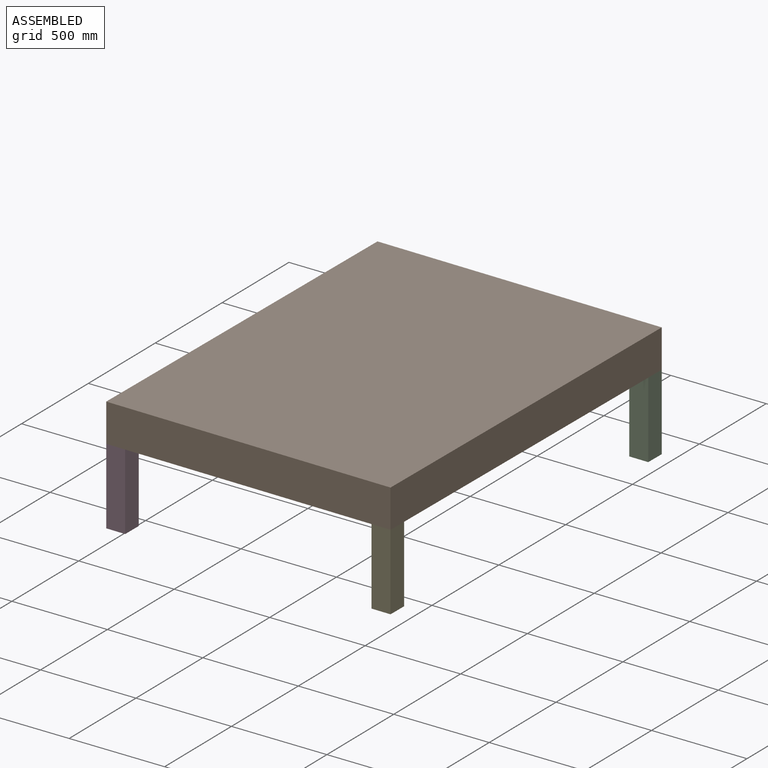
[diagram: assembled view]
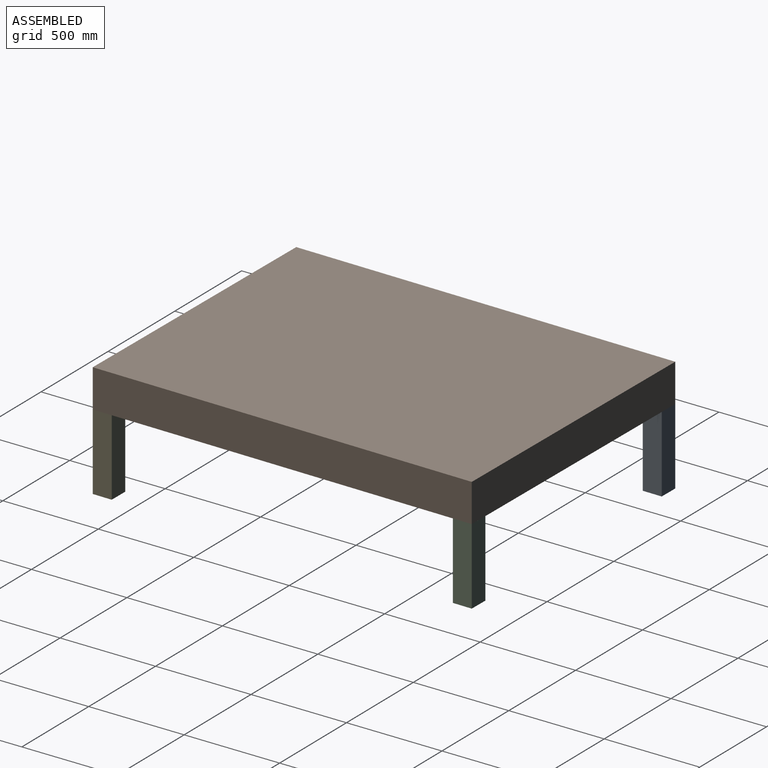
[diagram: assembled view, second angle]
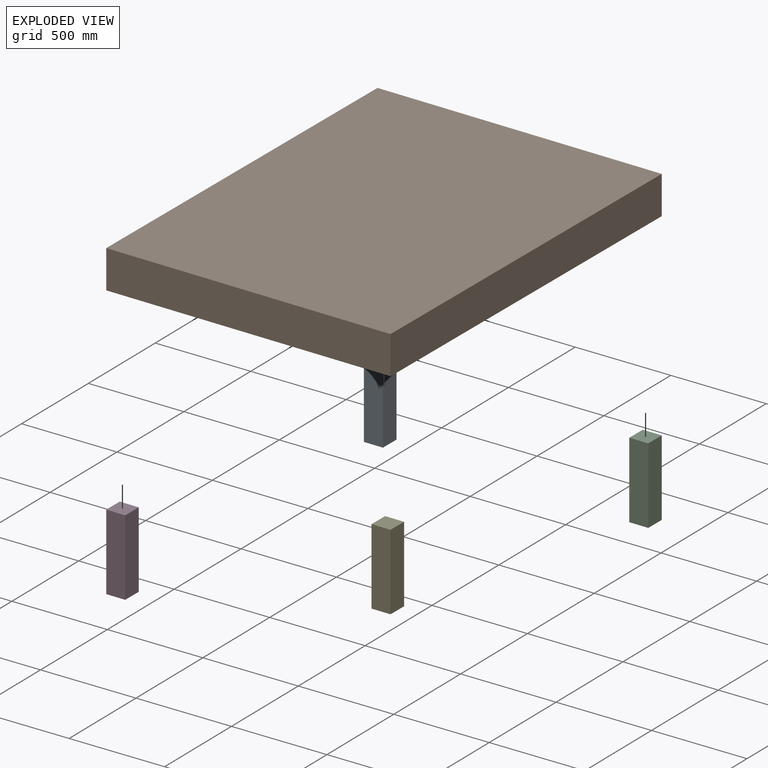
[diagram: exploded view]
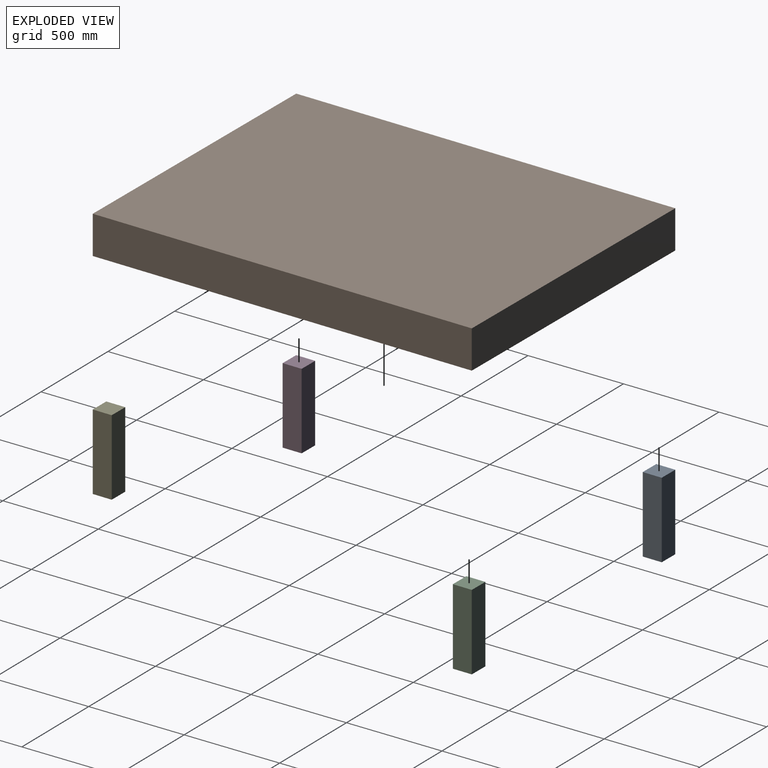
[diagram: exploded view, second angle]
ASSEMBLY  parts=5 mates=4
PART A: 6 faces, bbox 100x100x400 mm
  f0: plane 400x100mm, normal (0,-1,0), area 40000mm2, adj f1,f3,f4,f5
  f1: plane 400x100mm, normal (1,0,0), area 40000mm2, adj f0,f2,f4,f5
  f2: plane 400x100mm, normal (0,1,0), area 40000mm2, adj f1,f3,f4,f5
  f3: plane 400x100mm, normal (-1,0,0), area 40000mm2, adj f0,f2,f4,f5
  f4: plane 100x100mm, normal (0,0,1), area 10000mm2, adj f0,f1,f2,f3
  f5: plane 100x100mm, normal (0,0,-1), area 10000mm2, adj f0,f1,f2,f3
PART B: 6 faces, bbox 1999.8x1500x200 mm
  f0: plane 1500.03x200mm, normal (-1,0,0), area 300006.7mm2, adj f1,f3,f4,f5
  f1: plane 1999.8x200mm, normal (0,-1,0), area 399959.1mm2, adj f0,f2,f4,f5
  f2: plane 1500.03x200mm, normal (1,0,0), area 300006.7mm2, adj f1,f3,f4,f5
  f3: plane 1999.8x200mm, normal (0,1,0), area 399959.1mm2, adj f0,f2,f4,f5
  f4: plane 1999.8x1500.03mm, normal (0,0,1), area 2999759.9mm2, adj f0,f1,f2,f3
  f5: plane 1999.8x1500.03mm, normal (0,0,-1), area 2999759.9mm2, adj f0,f1,f2,f3
PART C: 6 faces, bbox 100x100x400 mm
  f0: plane 400x100mm, normal (1,0,0), area 40000mm2, adj f1,f3,f4,f5
  f1: plane 400x100mm, normal (0,1,0), area 40000mm2, adj f0,f2,f4,f5
  f2: plane 400x100mm, normal (-1,0,0), area 40000mm2, adj f1,f3,f4,f5
  f3: plane 400x100mm, normal (0,-1,0), area 40000mm2, adj f0,f2,f4,f5
  f4: plane 100x100mm, normal (0,0,1), area 10000mm2, adj f0,f1,f2,f3
  f5: plane 100x100mm, normal (0,0,-1), area 10000mm2, adj f0,f1,f2,f3
PART D: 6 faces, bbox 100x100x400 mm
  f0: plane 400x100mm, normal (0,-1,0), area 40000mm2, adj f1,f3,f4,f5
  f1: plane 400x100mm, normal (1,0,0), area 40000mm2, adj f0,f2,f4,f5
  f2: plane 400x100mm, normal (0,1,0), area 40000mm2, adj f1,f3,f4,f5
  f3: plane 400x100mm, normal (-1,0,0), area 40000mm2, adj f0,f2,f4,f5
  f4: plane 100x100mm, normal (0,0,1), area 10000mm2, adj f0,f1,f2,f3
  f5: plane 100x100mm, normal (0,0,-1), area 10000mm2, adj f0,f1,f2,f3
PART E: 6 faces, bbox 100x100x400 mm
  f0: plane 400x100mm, normal (0,1,0), area 40000mm2, adj f1,f3,f4,f5
  f1: plane 400x100mm, normal (-1,0,0), area 40000mm2, adj f0,f2,f4,f5
  f2: plane 400x100mm, normal (0,-1,0), area 40000mm2, adj f1,f3,f4,f5
  f3: plane 400x100mm, normal (1,0,0), area 40000mm2, adj f0,f2,f4,f5
  f4: plane 100x100mm, normal (0,0,1), area 10000mm2, adj f0,f1,f2,f3
  f5: plane 100x100mm, normal (0,0,-1), area 10000mm2, adj f0,f1,f2,f3
PLACE A rot(axis=(0,0,-1),90.6deg) t=(1098.14,7215.11,502.04)mm
PLACE B rot(axis=(0,0,-1),90.6deg) t=(1098.14,7215.11,502.04)mm
PLACE C rot(axis=(0,0,-1),90.6deg) t=(1098.18,7215.11,502.04)mm
PLACE D rot(axis=(0,0,-1),90.6deg) t=(1098.15,7215.31,502.04)mm
PLACE E rot(axis=(0,0,-1),90.6deg) t=(1098.18,7215.31,502.04)mm
MATE fastened C.f4 <-> B.f5  axis (0,0,1) through (1858.48,8207.3,902.04)mm
MATE fastened A.f4 <-> B.f5  axis (0,0,1) through (358.53,8222.82,902.04)mm
MATE fastened D.f4 <-> B.f5  axis (0,0,1) through (337.84,6223.13,902.04)mm
MATE fastened E.f4 <-> B.f5  axis (0,0,1) through (1837.79,6207.61,902.04)mm
